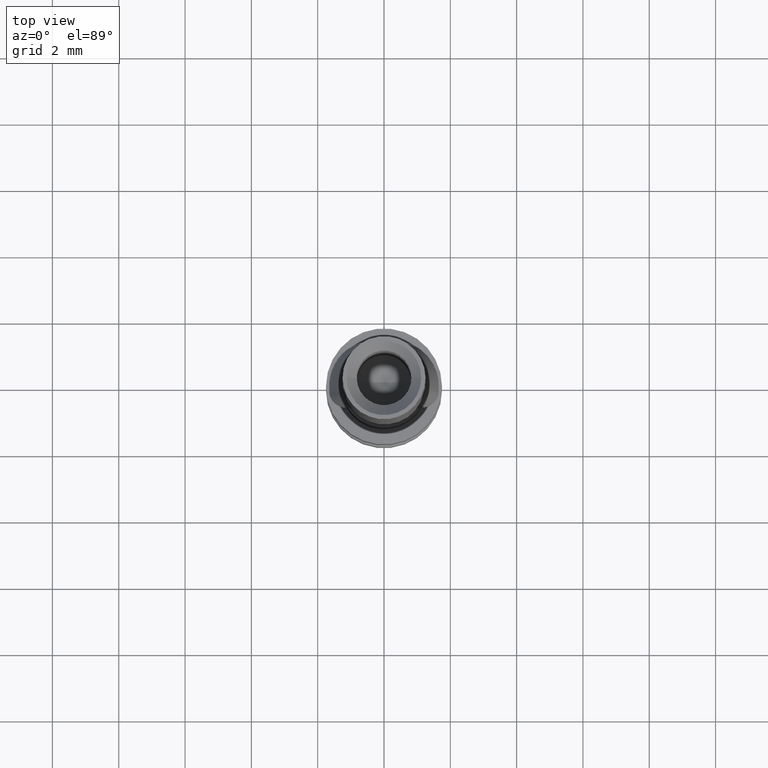
[diagram: clean part render]
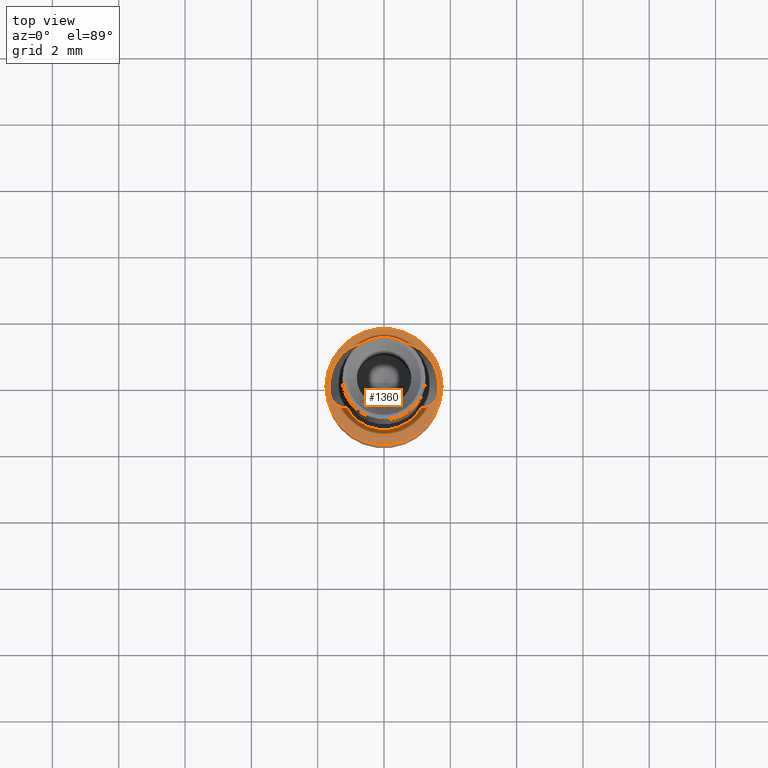
[diagram: same view with one face highlighted and labeled with its STEP entity id]
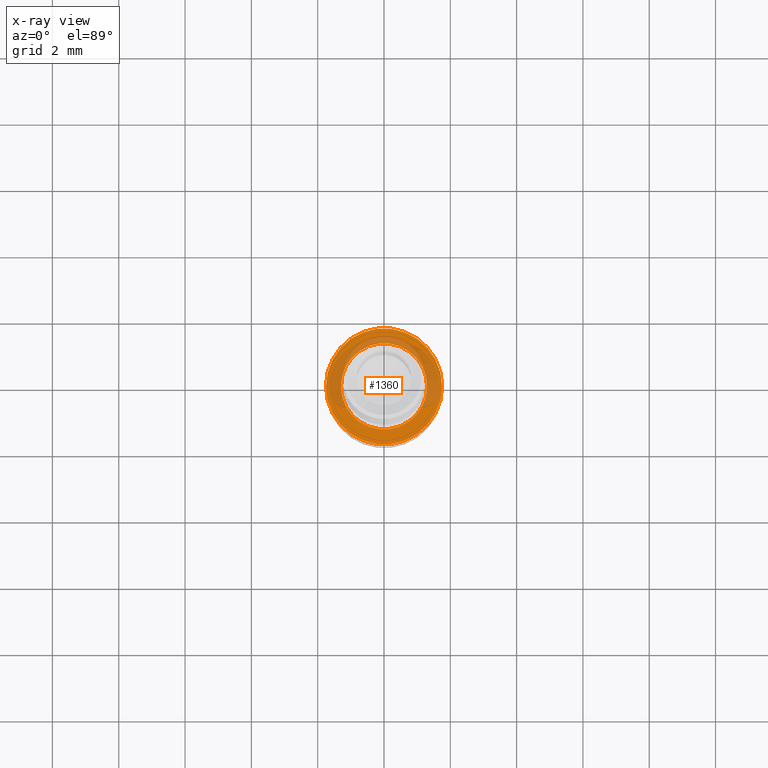
[diagram: x-ray of the same camera — body ghosted, the highlighted face saturated]
A machine part, top view. The second image highlights one B-rep face of the part: STEP entity #1360.
The next image is the same camera in x-ray: the body ghosted, the highlighted face saturated — about 38% of this face is hidden behind the body in this view.
In plain terms, the highlighted planar face has unit normal (0, 0, 1).
Its self-contained STEP definition (entity closure, byte-faithful):
#112 = CARTESIAN_POINT ( 'NONE',  ( 5.421010862427519705E-17, -1.084202172485499997E-16, 6.500000000000000000 ) ) ;
#124 = DIRECTION ( 'NONE',  ( 0.000000000000000000, 0.000000000000000000, 1.000000000000000000 ) ) ;
#149 = AXIS2_PLACEMENT_3D ( 'NONE', #112, #667, #1204 ) ;
#172 = DIRECTION ( 'NONE',  ( 0.000000000000000000, 0.000000000000000000, 1.000000000000000000 ) ) ;
#178 = DIRECTION ( 'NONE',  ( 0.000000000000000000, 0.000000000000000000, 1.000000000000000000 ) ) ;
#265 = DIRECTION ( 'NONE',  ( 0.000000000000000000, 0.000000000000000000, 1.000000000000000000 ) ) ;
#284 = CARTESIAN_POINT ( 'NONE',  ( -1.750000000000000000, 1.058929726022368178E-16, 6.500000000000000000 ) ) ;
#337 = CARTESIAN_POINT ( 'NONE',  ( 5.421010862427519705E-17, 0.000000000000000000, 6.500000000000000000 ) ) ;
#338 = PLANE ( 'NONE',  #730 ) ;
#359 = CIRCLE ( 'NONE', #996, 1.300000000000000044 ) ;
#389 = EDGE_CURVE ( 'NONE', #851, #987, #359, .T. ) ;
#429 = CARTESIAN_POINT ( 'NONE',  ( 1.300000000000000044, 0.000000000000000000, 6.500000000000000000 ) ) ;
#471 = CARTESIAN_POINT ( 'NONE',  ( 5.421010862427519705E-17, -1.084202172485499997E-16, 6.500000000000000000 ) ) ;
#550 = EDGE_LOOP ( 'NONE', ( #971, #1599 ) ) ;
#554 = CARTESIAN_POINT ( 'NONE',  ( -1.300000000000000044, 1.592040838891559095E-16, 6.500000000000000000 ) ) ;
#566 = ORIENTED_EDGE ( 'NONE', *, *, #629, .F. ) ;
#574 = VERTEX_POINT ( 'NONE', #1034 ) ;
#629 = EDGE_CURVE ( 'NONE', #987, #851, #1138, .T. ) ;
#667 = DIRECTION ( 'NONE',  ( 0.000000000000000000, 0.000000000000000000, 1.000000000000000000 ) ) ;
#730 = AXIS2_PLACEMENT_3D ( 'NONE', #471, #172, #1151 ) ;
#733 = DIRECTION ( 'NONE',  ( 1.000000000000000000, 0.000000000000000000, 0.000000000000000000 ) ) ;
#765 = CARTESIAN_POINT ( 'NONE',  ( 5.421010862427519705E-17, 0.000000000000000000, 6.500000000000000000 ) ) ;
#779 = EDGE_CURVE ( 'NONE', #574, #1678, #1453, .T. ) ;
#803 = AXIS2_PLACEMENT_3D ( 'NONE', #1509, #265, #1365 ) ;
#851 = VERTEX_POINT ( 'NONE', #554 ) ;
#966 = EDGE_LOOP ( 'NONE', ( #566, #1645 ) ) ;
#971 = ORIENTED_EDGE ( 'NONE', *, *, #779, .T. ) ;
#987 = VERTEX_POINT ( 'NONE', #429 ) ;
#996 = AXIS2_PLACEMENT_3D ( 'NONE', #337, #178, #733 ) ;
#1034 = CARTESIAN_POINT ( 'NONE',  ( 1.750000000000000000, -1.084202172485499997E-16, 6.500000000000000000 ) ) ;
#1138 = CIRCLE ( 'NONE', #1160, 1.300000000000000044 ) ;
#1151 = DIRECTION ( 'NONE',  ( 1.000000000000000000, 0.000000000000000000, 0.000000000000000000 ) ) ;
#1160 = AXIS2_PLACEMENT_3D ( 'NONE', #765, #124, #1217 ) ;
#1169 = FACE_BOUND ( 'NONE', #966, .T. ) ;
#1204 = DIRECTION ( 'NONE',  ( 1.000000000000000000, 0.000000000000000000, 0.000000000000000000 ) ) ;
#1217 = DIRECTION ( 'NONE',  ( 1.000000000000000000, 0.000000000000000000, 0.000000000000000000 ) ) ;
#1360 = ADVANCED_FACE ( 'NONE', ( #1573, #1169 ), #338, .T. ) ;
#1365 = DIRECTION ( 'NONE',  ( 1.000000000000000000, 0.000000000000000000, 0.000000000000000000 ) ) ;
#1453 = CIRCLE ( 'NONE', #149, 1.750000000000000000 ) ;
#1509 = CARTESIAN_POINT ( 'NONE',  ( 5.421010862427519705E-17, -1.084202172485499997E-16, 6.500000000000000000 ) ) ;
#1573 = FACE_OUTER_BOUND ( 'NONE', #550, .T. ) ;
#1599 = ORIENTED_EDGE ( 'NONE', *, *, #1686, .T. ) ;
#1645 = ORIENTED_EDGE ( 'NONE', *, *, #389, .F. ) ;
#1678 = VERTEX_POINT ( 'NONE', #284 ) ;
#1686 = EDGE_CURVE ( 'NONE', #1678, #574, #1700, .T. ) ;
#1700 = CIRCLE ( 'NONE', #803, 1.750000000000000000 ) ;